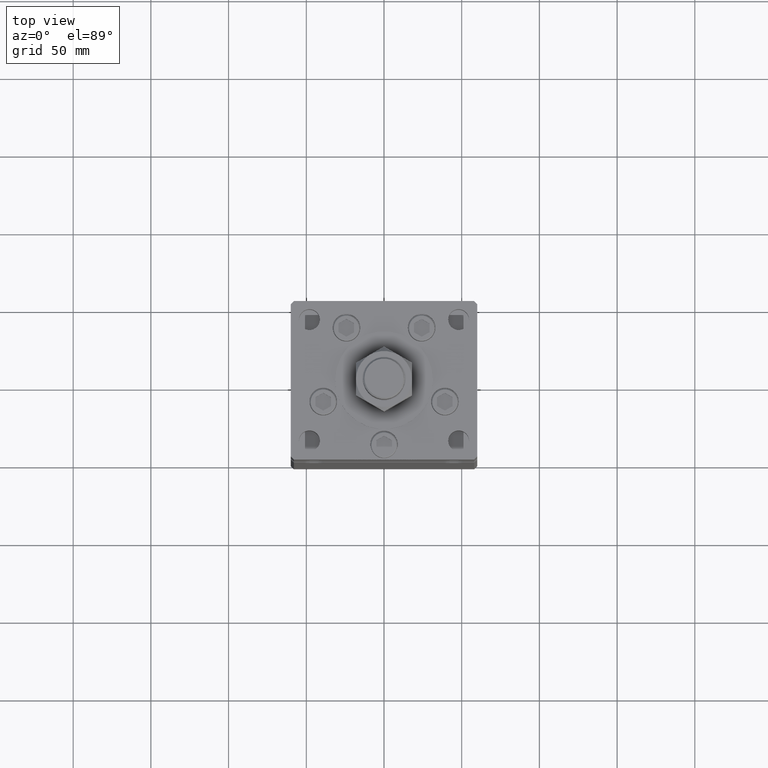
[diagram: clean part render]
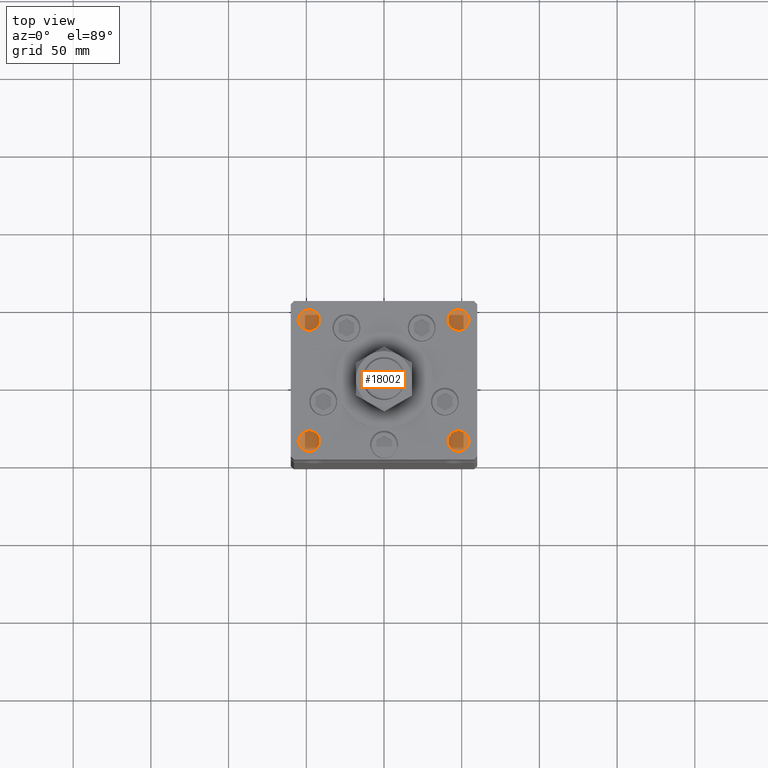
[diagram: same view with one face highlighted and labeled with its STEP entity id]
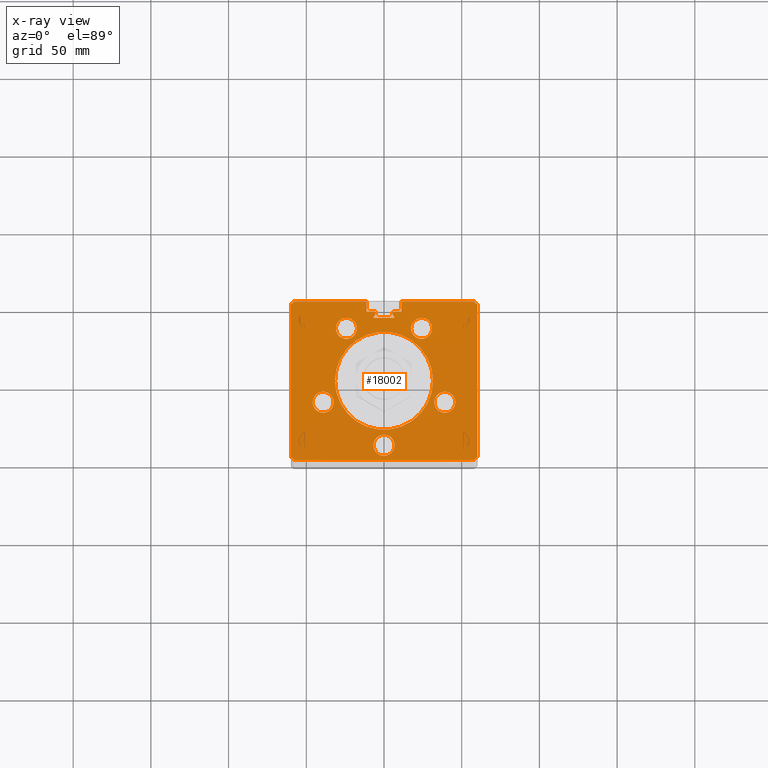
[diagram: x-ray of the same camera — body ghosted, the highlighted face saturated]
A machine part, top view. The second image highlights one B-rep face of the part: STEP entity #18002.
The next image is the same camera in x-ray: the body ghosted, the highlighted face saturated — about 0% of this face is hidden behind the body in this view.
In plain terms, the highlighted planar face has unit normal (0, 0, -1).
Its self-contained STEP definition (entity closure, byte-faithful):
#184 = AXIS2_PLACEMENT_3D ( 'NONE', #44796, #23506, #49489 ) ;
#585 = CARTESIAN_POINT ( 'NONE',  ( -60.00000000000001421, 49.00000000000000000, 318.5000000000000000 ) ) ;
#901 = ORIENTED_EDGE ( 'NONE', *, *, #24829, .F. ) ;
#908 = ORIENTED_EDGE ( 'NONE', *, *, #42761, .T. ) ;
#933 = AXIS2_PLACEMENT_3D ( 'NONE', #26410, #10060, #23847 ) ;
#1449 = LINE ( 'NONE', #18329, #40285 ) ;
#1496 = VERTEX_POINT ( 'NONE', #4955 ) ;
#1750 = DIRECTION ( 'NONE',  ( 0.000000000000000000, 0.000000000000000000, -1.000000000000000000 ) ) ;
#2105 = CARTESIAN_POINT ( 'NONE',  ( -11.24999999999999822, 51.00000000000000711, 318.5000000000000000 ) ) ;
#2210 = CARTESIAN_POINT ( 'NONE',  ( 2.541142108230757874E-15, -41.50000000000000000, 318.5000000000000000 ) ) ;
#2212 = CARTESIAN_POINT ( 'NONE',  ( -31.50000000000000000, 0.000000000000000000, 318.5000000000000000 ) ) ;
#2327 = DIRECTION ( 'NONE',  ( 2.832201593431522219E-16, -1.000000000000000000, 0.000000000000000000 ) ) ;
#2602 = VECTOR ( 'NONE', #2327, 1000.000000000000000 ) ;
#2638 = VERTEX_POINT ( 'NONE', #5847 ) ;
#2900 = AXIS2_PLACEMENT_3D ( 'NONE', #53317, #10976, #19009 ) ;
#2907 = EDGE_CURVE ( 'NONE', #54225, #7369, #43151, .T. ) ;
#3264 = CARTESIAN_POINT ( 'NONE',  ( 0.000000000000000000, 0.000000000000000000, 318.5000000000000000 ) ) ;
#3308 = ORIENTED_EDGE ( 'NONE', *, *, #46725, .F. ) ;
#3716 = AXIS2_PLACEMENT_3D ( 'NONE', #23276, #52300, #52017 ) ;
#3747 = VERTEX_POINT ( 'NONE', #6344 ) ;
#3781 = ORIENTED_EDGE ( 'NONE', *, *, #25517, .F. ) ;
#4073 = VECTOR ( 'NONE', #10491, 1000.000000000000000 ) ;
#4094 = VERTEX_POINT ( 'NONE', #6556 ) ;
#4399 = CARTESIAN_POINT ( 'NONE',  ( -45.87657522565562829, -13.83333333333334636, 318.5000000000000000 ) ) ;
#4817 = CARTESIAN_POINT ( 'NONE',  ( 11.24999999999999112, 51.00000000000000711, 318.5000000000000000 ) ) ;
#4955 = CARTESIAN_POINT ( 'NONE',  ( -17.44288941894912881, 33.71875000000000000, 318.5000000000000000 ) ) ;
#5012 = EDGE_CURVE ( 'NONE', #21434, #29641, #44481, .T. ) ;
#5200 = EDGE_CURVE ( 'NONE', #33387, #13424, #28357, .T. ) ;
#5481 = CIRCLE ( 'NONE', #32014, 6.749999999999999112 ) ;
#5847 = CARTESIAN_POINT ( 'NONE',  ( -30.94288941894912526, 33.71875000000000000, 318.5000000000000000 ) ) ;
#5978 = ORIENTED_EDGE ( 'NONE', *, *, #45956, .F. ) ;
#6019 = CARTESIAN_POINT ( 'NONE',  ( 39.12657522565562829, -13.83333333333334103, 318.5000000000000000 ) ) ;
#6159 = CARTESIAN_POINT ( 'NONE',  ( 11.24999999999999822, 44.50000000000000711, 318.5000000000000000 ) ) ;
#6182 = CIRCLE ( 'NONE', #51262, 31.50000000000000000 ) ;
#6344 = CARTESIAN_POINT ( 'NONE',  ( 45.87657522565562829, -13.83333333333334103, 318.5000000000000000 ) ) ;
#6533 = AXIS2_PLACEMENT_3D ( 'NONE', #10039, #39634, #35496 ) ;
#6556 = CARTESIAN_POINT ( 'NONE',  ( 30.94288941894911815, 33.71875000000000000, 318.5000000000000000 ) ) ;
#6842 = VERTEX_POINT ( 'NONE', #15455 ) ;
#7126 = EDGE_CURVE ( 'NONE', #53604, #15767, #15959, .T. ) ;
#7263 = CARTESIAN_POINT ( 'NONE',  ( -11.24999999999999822, 0.000000000000000000, 318.5000000000000000 ) ) ;
#7269 = CIRCLE ( 'NONE', #184, 6.749999999999999112 ) ;
#7369 = VERTEX_POINT ( 'NONE', #51438 ) ;
#7412 = FACE_BOUND ( 'NONE', #22142, .T. ) ;
#7494 = DIRECTION ( 'NONE',  ( 1.000000000000000000, 0.000000000000000000, 0.000000000000000000 ) ) ;
#7620 = CIRCLE ( 'NONE', #24481, 6.749999999999999112 ) ;
#7933 = AXIS2_PLACEMENT_3D ( 'NONE', #37122, #44606, #54004 ) ;
#8007 = VERTEX_POINT ( 'NONE', #51824 ) ;
#8199 = DIRECTION ( 'NONE',  ( 1.000000000000000000, 0.000000000000000000, 0.000000000000000000 ) ) ;
#8498 = LINE ( 'NONE', #12379, #39669 ) ;
#8671 = VERTEX_POINT ( 'NONE', #53897 ) ;
#8791 = AXIS2_PLACEMENT_3D ( 'NONE', #10600, #1750, #16350 ) ;
#8836 = VERTEX_POINT ( 'NONE', #18426 ) ;
#9064 = CIRCLE ( 'NONE', #6533, 6.749999999999999112 ) ;
#9176 = EDGE_CURVE ( 'NONE', #54225, #6842, #24843, .T. ) ;
#9593 = ORIENTED_EDGE ( 'NONE', *, *, #27259, .F. ) ;
#10039 = CARTESIAN_POINT ( 'NONE',  ( -24.19288941894912881, 33.71875000000000000, 318.5000000000000000 ) ) ;
#10060 = DIRECTION ( 'NONE',  ( -0.000000000000000000, 0.000000000000000000, 1.000000000000000000 ) ) ;
#10099 = DIRECTION ( 'NONE',  ( 0.000000000000000000, 0.000000000000000000, -1.000000000000000000 ) ) ;
#10491 = DIRECTION ( 'NONE',  ( -1.000000000000000000, 0.000000000000000000, 0.000000000000000000 ) ) ;
#10562 = VECTOR ( 'NONE', #27064, 1000.000000000000000 ) ;
#10600 = CARTESIAN_POINT ( 'NONE',  ( -6.183333333333997928, 43.56666666666600207, 318.5000000000000000 ) ) ;
#10867 = LINE ( 'NONE', #27776, #15616 ) ;
#10976 = DIRECTION ( 'NONE',  ( 0.000000000000000000, 0.000000000000000000, 1.000000000000000000 ) ) ;
#11452 = VECTOR ( 'NONE', #19261, 1000.000000000000000 ) ;
#11784 = VERTEX_POINT ( 'NONE', #16831 ) ;
#12077 = VECTOR ( 'NONE', #40346, 1000.000000000000000 ) ;
#12379 = CARTESIAN_POINT ( 'NONE',  ( 59.99999999999998579, -48.99999999999998579, 318.5000000000000000 ) ) ;
#12549 = ORIENTED_EDGE ( 'NONE', *, *, #32867, .F. ) ;
#13041 = ORIENTED_EDGE ( 'NONE', *, *, #40275, .F. ) ;
#13424 = VERTEX_POINT ( 'NONE', #39675 ) ;
#13457 = CIRCLE ( 'NONE', #2900, 6.749999999999999112 ) ;
#13556 = EDGE_CURVE ( 'NONE', #47385, #24128, #46034, .T. ) ;
#14498 = EDGE_CURVE ( 'NONE', #8007, #33387, #1449, .T. ) ;
#14509 = CARTESIAN_POINT ( 'NONE',  ( -60.00000000000001421, 49.00000000000000000, 318.5000000000000000 ) ) ;
#14885 = FACE_BOUND ( 'NONE', #51532, .T. ) ;
#15006 = EDGE_CURVE ( 'NONE', #7369, #41560, #28510, .T. ) ;
#15174 = FACE_BOUND ( 'NONE', #22967, .T. ) ;
#15449 = FACE_BOUND ( 'NONE', #47855, .T. ) ;
#15455 = CARTESIAN_POINT ( 'NONE',  ( 6.183333333333997928, 44.50000000000000711, 318.5000000000000000 ) ) ;
#15602 = ORIENTED_EDGE ( 'NONE', *, *, #38655, .T. ) ;
#15616 = VECTOR ( 'NONE', #44904, 1000.000000000000114 ) ;
#15690 = CARTESIAN_POINT ( 'NONE',  ( -11.24999999999999822, 51.00000000000000711, 318.5000000000000000 ) ) ;
#15767 = VERTEX_POINT ( 'NONE', #2212 ) ;
#15915 = LINE ( 'NONE', #45512, #46255 ) ;
#15922 = VERTEX_POINT ( 'NONE', #50607 ) ;
#15959 = CIRCLE ( 'NONE', #933, 31.50000000000000000 ) ;
#15995 = FACE_BOUND ( 'NONE', #32657, .T. ) ;
#16350 = DIRECTION ( 'NONE',  ( 1.000000000000000000, 0.000000000000000000, 0.000000000000000000 ) ) ;
#16377 = EDGE_CURVE ( 'NONE', #11784, #33082, #7620, .T. ) ;
#16535 = DIRECTION ( 'NONE',  ( -1.000000000000000000, 0.000000000000000000, 0.000000000000000000 ) ) ;
#16831 = CARTESIAN_POINT ( 'NONE',  ( 6.750000000000001776, -41.50000000000000000, 318.5000000000000000 ) ) ;
#16852 = EDGE_CURVE ( 'NONE', #13424, #32192, #10867, .T. ) ;
#16891 = LINE ( 'NONE', #41799, #49589 ) ;
#18002 = ADVANCED_FACE ( 'NONE', ( #15174, #7412, #45589, #15995, #14885, #32610, #15449 ), #24317, .F. ) ;
#18061 = DIRECTION ( 'NONE',  ( 1.000000000000000000, 0.000000000000000000, 0.000000000000000000 ) ) ;
#18091 = EDGE_CURVE ( 'NONE', #24128, #25380, #36201, .T. ) ;
#18329 = CARTESIAN_POINT ( 'NONE',  ( -57.99999999999999289, 51.00000000000000711, 318.5000000000000000 ) ) ;
#18426 = CARTESIAN_POINT ( 'NONE',  ( -5.375042956467942723, 43.09999999999899956, 318.5000000000000000 ) ) ;
#18945 = EDGE_LOOP ( 'NONE', ( #908, #19590, #3781, #48355, #24277, #30495, #39314, #9593, #35814, #52666, #12549, #34738, #36442, #50326, #31769, #53788, #15602, #901, #21529 ) ) ;
#19009 = DIRECTION ( 'NONE',  ( 1.000000000000000000, 0.000000000000000000, 0.000000000000000000 ) ) ;
#19248 = EDGE_CURVE ( 'NONE', #30731, #8671, #45178, .T. ) ;
#19261 = DIRECTION ( 'NONE',  ( 1.000000000000000000, 0.000000000000000000, 0.000000000000000000 ) ) ;
#19395 = CIRCLE ( 'NONE', #50310, 6.749999999999999112 ) ;
#19590 = ORIENTED_EDGE ( 'NONE', *, *, #19248, .T. ) ;
#20488 = VERTEX_POINT ( 'NONE', #4399 ) ;
#21064 = CARTESIAN_POINT ( 'NONE',  ( 17.44288941894912170, 33.71875000000000000, 318.5000000000000000 ) ) ;
#21434 = VERTEX_POINT ( 'NONE', #4817 ) ;
#21529 = ORIENTED_EDGE ( 'NONE', *, *, #33789, .F. ) ;
#22033 = VECTOR ( 'NONE', #44604, 1000.000000000000000 ) ;
#22140 = CARTESIAN_POINT ( 'NONE',  ( 22.69412966890515193, 13.10246187336661094, 318.5000000000000000 ) ) ;
#22142 = EDGE_LOOP ( 'NONE', ( #31495, #40987 ) ) ;
#22430 = CARTESIAN_POINT ( 'NONE',  ( -57.99999999999997868, -50.99999999999999289, 318.5000000000000000 ) ) ;
#22967 = EDGE_LOOP ( 'NONE', ( #5978, #28641 ) ) ;
#23258 = CARTESIAN_POINT ( 'NONE',  ( 0.000000000000000000, 40.49999999999987210, 318.5000000000000000 ) ) ;
#23276 = CARTESIAN_POINT ( 'NONE',  ( -39.12657522565562829, -13.83333333333334636, 318.5000000000000000 ) ) ;
#23311 = CIRCLE ( 'NONE', #49803, 6.749999999999999112 ) ;
#23484 = CARTESIAN_POINT ( 'NONE',  ( 60.00000000000001421, 49.00000000000000000, 318.5000000000000000 ) ) ;
#23506 = DIRECTION ( 'NONE',  ( 0.000000000000000000, 0.000000000000000000, 1.000000000000000000 ) ) ;
#23534 = VERTEX_POINT ( 'NONE', #21064 ) ;
#23543 = CARTESIAN_POINT ( 'NONE',  ( -6.876153656360465050, 40.49999999999987210, 318.5000000000000000 ) ) ;
#23837 = CIRCLE ( 'NONE', #8791, 0.9333333333340008142 ) ;
#23847 = DIRECTION ( 'NONE',  ( 1.000000000000000000, 0.000000000000000000, 0.000000000000000000 ) ) ;
#24128 = VERTEX_POINT ( 'NONE', #48721 ) ;
#24277 = ORIENTED_EDGE ( 'NONE', *, *, #5200, .T. ) ;
#24317 = PLANE ( 'NONE',  #35944 ) ;
#24481 = AXIS2_PLACEMENT_3D ( 'NONE', #2210, #27407, #45377 ) ;
#24829 = EDGE_CURVE ( 'NONE', #15922, #8836, #23837, .T. ) ;
#24843 = CIRCLE ( 'NONE', #47811, 0.9333333333340008142 ) ;
#25286 = DIRECTION ( 'NONE',  ( 0.7071067811865500152, -0.7071067811865451302, 0.000000000000000000 ) ) ;
#25356 = EDGE_CURVE ( 'NONE', #33082, #11784, #19395, .T. ) ;
#25380 = VERTEX_POINT ( 'NONE', #27296 ) ;
#25394 = DIRECTION ( 'NONE',  ( -0.7071067811865474617, -0.7071067811865474617, 0.000000000000000000 ) ) ;
#25517 = EDGE_CURVE ( 'NONE', #8007, #8671, #44718, .T. ) ;
#25911 = VECTOR ( 'NONE', #16535, 1000.000000000000000 ) ;
#26292 = CARTESIAN_POINT ( 'NONE',  ( 57.99999999999997868, -50.99999999999999289, 318.5000000000000000 ) ) ;
#26410 = CARTESIAN_POINT ( 'NONE',  ( 0.000000000000000000, 0.000000000000000000, 318.5000000000000000 ) ) ;
#26626 = VECTOR ( 'NONE', #8199, 1000.000000000000000 ) ;
#27064 = DIRECTION ( 'NONE',  ( -0.000000000000000000, -1.000000000000000000, 0.000000000000000000 ) ) ;
#27259 = EDGE_CURVE ( 'NONE', #25380, #49910, #8498, .T. ) ;
#27296 = CARTESIAN_POINT ( 'NONE',  ( 59.99999999999998579, -48.99999999999998579, 318.5000000000000000 ) ) ;
#27397 = DIRECTION ( 'NONE',  ( 0.000000000000000000, 0.000000000000000000, 1.000000000000000000 ) ) ;
#27407 = DIRECTION ( 'NONE',  ( 0.000000000000000000, 0.000000000000000000, 1.000000000000000000 ) ) ;
#27539 = AXIS2_PLACEMENT_3D ( 'NONE', #52149, #10099, #36406 ) ;
#27776 = CARTESIAN_POINT ( 'NONE',  ( -59.99999999999998579, -48.99999999999998579, 318.5000000000000000 ) ) ;
#28275 = DIRECTION ( 'NONE',  ( 0.000000000000000000, 0.000000000000000000, 1.000000000000000000 ) ) ;
#28357 = LINE ( 'NONE', #14509, #2602 ) ;
#28510 = LINE ( 'NONE', #23258, #4073 ) ;
#28641 = ORIENTED_EDGE ( 'NONE', *, *, #34335, .F. ) ;
#28731 = EDGE_CURVE ( 'NONE', #29641, #6842, #39610, .T. ) ;
#28831 = VERTEX_POINT ( 'NONE', #28830 ) ;
#28830 = CARTESIAN_POINT ( 'NONE',  ( -32.37657522565562829, -13.83333333333334636, 318.5000000000000000 ) ) ;
#29640 = DIRECTION ( 'NONE',  ( 0.4999999999999985012, -0.8660254037844393737, 0.000000000000000000 ) ) ;
#29641 = VERTEX_POINT ( 'NONE', #6159 ) ;
#30495 = ORIENTED_EDGE ( 'NONE', *, *, #16852, .T. ) ;
#30731 = VERTEX_POINT ( 'NONE', #33299 ) ;
#31324 = CARTESIAN_POINT ( 'NONE',  ( -24.19288941894912881, 33.71875000000000000, 318.5000000000000000 ) ) ;
#31495 = ORIENTED_EDGE ( 'NONE', *, *, #16377, .F. ) ;
#31592 = DIRECTION ( 'NONE',  ( 1.000000000000000000, 0.000000000000000000, 0.000000000000000000 ) ) ;
#31606 = VECTOR ( 'NONE', #45981, 1000.000000000000000 ) ;
#31769 = ORIENTED_EDGE ( 'NONE', *, *, #2907, .T. ) ;
#31778 = DIRECTION ( 'NONE',  ( 1.000000000000000000, 0.000000000000000000, 0.000000000000000000 ) ) ;
#32014 = AXIS2_PLACEMENT_3D ( 'NONE', #31324, #28275, #31592 ) ;
#32192 = VERTEX_POINT ( 'NONE', #22430 ) ;
#32421 = DIRECTION ( 'NONE',  ( 1.000000000000000000, 0.000000000000000000, 0.000000000000000000 ) ) ;
#32583 = LINE ( 'NONE', #15690, #26626 ) ;
#32610 = FACE_OUTER_BOUND ( 'NONE', #18945, .T. ) ;
#32657 = EDGE_LOOP ( 'NONE', ( #54126, #42495 ) ) ;
#32867 = EDGE_CURVE ( 'NONE', #21434, #47385, #32583, .T. ) ;
#33082 = VERTEX_POINT ( 'NONE', #36933 ) ;
#33152 = LINE ( 'NONE', #45856, #25911 ) ;
#33299 = CARTESIAN_POINT ( 'NONE',  ( -11.24999999999999822, 44.50000000000000711, 318.5000000000000000 ) ) ;
#33387 = VERTEX_POINT ( 'NONE', #585 ) ;
#33496 = VECTOR ( 'NONE', #29640, 1000.000000000000114 ) ;
#33789 = EDGE_CURVE ( 'NONE', #40636, #15922, #42526, .T. ) ;
#34335 = EDGE_CURVE ( 'NONE', #20488, #28831, #37282, .T. ) ;
#34738 = ORIENTED_EDGE ( 'NONE', *, *, #5012, .T. ) ;
#34784 = DIRECTION ( 'NONE',  ( 0.000000000000000000, 0.000000000000000000, 1.000000000000000000 ) ) ;
#34876 = DIRECTION ( 'NONE',  ( 1.000000000000000000, 0.000000000000000000, 0.000000000000000000 ) ) ;
#35045 = CARTESIAN_POINT ( 'NONE',  ( 2.541142108230757874E-15, -41.50000000000000000, 318.5000000000000000 ) ) ;
#35496 = DIRECTION ( 'NONE',  ( 1.000000000000000000, 0.000000000000000000, 0.000000000000000000 ) ) ;
#35814 = ORIENTED_EDGE ( 'NONE', *, *, #18091, .F. ) ;
#35827 = VECTOR ( 'NONE', #25286, 1000.000000000000114 ) ;
#35944 = AXIS2_PLACEMENT_3D ( 'NONE', #3264, #49199, #36754 ) ;
#36028 = CARTESIAN_POINT ( 'NONE',  ( 0.000000000000000000, 44.50000000000000711, 318.5000000000000000 ) ) ;
#36201 = LINE ( 'NONE', #23484, #12077 ) ;
#36349 = EDGE_CURVE ( 'NONE', #23534, #4094, #7269, .T. ) ;
#36406 = DIRECTION ( 'NONE',  ( 1.000000000000000000, 0.000000000000000000, 0.000000000000000000 ) ) ;
#36442 = ORIENTED_EDGE ( 'NONE', *, *, #28731, .T. ) ;
#36754 = DIRECTION ( 'NONE',  ( -1.000000000000000000, 0.000000000000000000, -0.000000000000000000 ) ) ;
#36933 = CARTESIAN_POINT ( 'NONE',  ( -6.749999999999996447, -41.50000000000000000, 318.5000000000000000 ) ) ;
#37098 = CARTESIAN_POINT ( 'NONE',  ( 6.183333333333997928, 43.56666666666600207, 318.5000000000000000 ) ) ;
#37122 = CARTESIAN_POINT ( 'NONE',  ( -39.12657522565562829, -13.83333333333334636, 318.5000000000000000 ) ) ;
#37146 = AXIS2_PLACEMENT_3D ( 'NONE', #52282, #27397, #34876 ) ;
#37282 = CIRCLE ( 'NONE', #3716, 6.749999999999999112 ) ;
#37750 = DIRECTION ( 'NONE',  ( 0.4999999999999985012, 0.8660254037844393737, 0.000000000000000000 ) ) ;
#38142 = ORIENTED_EDGE ( 'NONE', *, *, #52084, .F. ) ;
#38655 = EDGE_CURVE ( 'NONE', #41560, #8836, #15915, .T. ) ;
#39314 = ORIENTED_EDGE ( 'NONE', *, *, #49155, .T. ) ;
#39405 = ORIENTED_EDGE ( 'NONE', *, *, #7126, .F. ) ;
#39589 = ORIENTED_EDGE ( 'NONE', *, *, #53419, .F. ) ;
#39610 = LINE ( 'NONE', #36028, #22033 ) ;
#39634 = DIRECTION ( 'NONE',  ( 0.000000000000000000, 0.000000000000000000, 1.000000000000000000 ) ) ;
#39669 = VECTOR ( 'NONE', #25394, 1000.000000000000114 ) ;
#39675 = CARTESIAN_POINT ( 'NONE',  ( -59.99999999999998579, -48.99999999999998579, 318.5000000000000000 ) ) ;
#40187 = CARTESIAN_POINT ( 'NONE',  ( 0.000000000000000000, 0.000000000000000000, 318.5000000000000000 ) ) ;
#40275 = EDGE_CURVE ( 'NONE', #3747, #43450, #23311, .T. ) ;
#40285 = VECTOR ( 'NONE', #53189, 1000.000000000000114 ) ;
#40346 = DIRECTION ( 'NONE',  ( -2.832201593431522219E-16, -1.000000000000000000, 0.000000000000000000 ) ) ;
#40424 = ORIENTED_EDGE ( 'NONE', *, *, #41345, .F. ) ;
#40636 = VERTEX_POINT ( 'NONE', #52072 ) ;
#40987 = ORIENTED_EDGE ( 'NONE', *, *, #25356, .F. ) ;
#41345 = EDGE_CURVE ( 'NONE', #2638, #1496, #9064, .T. ) ;
#41412 = CARTESIAN_POINT ( 'NONE',  ( 57.99999999999999289, 51.00000000000000711, 318.5000000000000000 ) ) ;
#41560 = VERTEX_POINT ( 'NONE', #23543 ) ;
#41799 = CARTESIAN_POINT ( 'NONE',  ( -57.99999999999997868, -50.99999999999999289, 318.5000000000000000 ) ) ;
#42495 = ORIENTED_EDGE ( 'NONE', *, *, #36349, .F. ) ;
#42526 = CIRCLE ( 'NONE', #27539, 0.9333333333340008142 ) ;
#42761 = EDGE_CURVE ( 'NONE', #40636, #30731, #33152, .T. ) ;
#42963 = CARTESIAN_POINT ( 'NONE',  ( 32.37657522565562829, -13.83333333333334103, 318.5000000000000000 ) ) ;
#43151 = LINE ( 'NONE', #22140, #33496 ) ;
#43450 = VERTEX_POINT ( 'NONE', #42963 ) ;
#43621 = DIRECTION ( 'NONE',  ( 1.000000000000000000, 0.000000000000000000, 0.000000000000000000 ) ) ;
#43774 = DIRECTION ( 'NONE',  ( -0.000000000000000000, 0.000000000000000000, 1.000000000000000000 ) ) ;
#44143 = CARTESIAN_POINT ( 'NONE',  ( 5.375042956467942723, 43.09999999999899956, 318.5000000000000000 ) ) ;
#44481 = LINE ( 'NONE', #45028, #10562 ) ;
#44604 = DIRECTION ( 'NONE',  ( -1.000000000000000000, 0.000000000000000000, 0.000000000000000000 ) ) ;
#44606 = DIRECTION ( 'NONE',  ( 0.000000000000000000, 0.000000000000000000, 1.000000000000000000 ) ) ;
#44718 = LINE ( 'NONE', #2105, #11452 ) ;
#44796 = CARTESIAN_POINT ( 'NONE',  ( 24.19288941894912170, 33.71875000000000000, 318.5000000000000000 ) ) ;
#44857 = DIRECTION ( 'NONE',  ( 0.000000000000000000, 0.000000000000000000, -1.000000000000000000 ) ) ;
#44904 = DIRECTION ( 'NONE',  ( 0.7071067811865474617, -0.7071067811865474617, 0.000000000000000000 ) ) ;
#45012 = CARTESIAN_POINT ( 'NONE',  ( 31.50000000000000000, 3.857637417314162689E-15, 318.5000000000000000 ) ) ;
#45028 = CARTESIAN_POINT ( 'NONE',  ( 11.24999999999999822, 0.000000000000000000, 318.5000000000000000 ) ) ;
#45178 = LINE ( 'NONE', #7263, #31606 ) ;
#45377 = DIRECTION ( 'NONE',  ( 1.000000000000000000, 0.000000000000000000, 0.000000000000000000 ) ) ;
#45512 = CARTESIAN_POINT ( 'NONE',  ( -22.69412966890515193, 13.10246187336661094, 318.5000000000000000 ) ) ;
#45589 = FACE_BOUND ( 'NONE', #52069, .T. ) ;
#45856 = CARTESIAN_POINT ( 'NONE',  ( 0.000000000000000000, 44.50000000000000711, 318.5000000000000000 ) ) ;
#45956 = EDGE_CURVE ( 'NONE', #28831, #20488, #47668, .T. ) ;
#45981 = DIRECTION ( 'NONE',  ( 0.000000000000000000, 1.000000000000000000, 0.000000000000000000 ) ) ;
#46034 = LINE ( 'NONE', #46312, #35827 ) ;
#46255 = VECTOR ( 'NONE', #37750, 1000.000000000000114 ) ;
#46312 = CARTESIAN_POINT ( 'NONE',  ( 57.99999999999999289, 51.00000000000000711, 318.5000000000000000 ) ) ;
#46725 = EDGE_CURVE ( 'NONE', #15767, #53604, #6182, .T. ) ;
#46970 = EDGE_CURVE ( 'NONE', #4094, #23534, #52996, .T. ) ;
#47385 = VERTEX_POINT ( 'NONE', #41412 ) ;
#47668 = CIRCLE ( 'NONE', #7933, 6.749999999999999112 ) ;
#47811 = AXIS2_PLACEMENT_3D ( 'NONE', #37098, #44857, #32421 ) ;
#47855 = EDGE_LOOP ( 'NONE', ( #3308, #39405 ) ) ;
#48355 = ORIENTED_EDGE ( 'NONE', *, *, #14498, .T. ) ;
#48721 = CARTESIAN_POINT ( 'NONE',  ( 60.00000000000001421, 49.00000000000000000, 318.5000000000000000 ) ) ;
#48934 = DIRECTION ( 'NONE',  ( 0.000000000000000000, 0.000000000000000000, 1.000000000000000000 ) ) ;
#49155 = EDGE_CURVE ( 'NONE', #32192, #49910, #16891, .T. ) ;
#49199 = DIRECTION ( 'NONE',  ( 0.000000000000000000, 0.000000000000000000, -1.000000000000000000 ) ) ;
#49489 = DIRECTION ( 'NONE',  ( 1.000000000000000000, 0.000000000000000000, 0.000000000000000000 ) ) ;
#49589 = VECTOR ( 'NONE', #7494, 1000.000000000000000 ) ;
#49803 = AXIS2_PLACEMENT_3D ( 'NONE', #6019, #48934, #31778 ) ;
#49910 = VERTEX_POINT ( 'NONE', #26292 ) ;
#50310 = AXIS2_PLACEMENT_3D ( 'NONE', #35045, #34784, #43621 ) ;
#50326 = ORIENTED_EDGE ( 'NONE', *, *, #9176, .F. ) ;
#50607 = CARTESIAN_POINT ( 'NONE',  ( -5.249999999999996447, 43.56666666666600207, 318.5000000000000000 ) ) ;
#51262 = AXIS2_PLACEMENT_3D ( 'NONE', #40187, #43774, #18061 ) ;
#51438 = CARTESIAN_POINT ( 'NONE',  ( 6.876153656360465050, 40.49999999999987210, 318.5000000000000000 ) ) ;
#51532 = EDGE_LOOP ( 'NONE', ( #38142, #40424 ) ) ;
#51824 = CARTESIAN_POINT ( 'NONE',  ( -57.99999999999999289, 51.00000000000000711, 318.5000000000000000 ) ) ;
#52017 = DIRECTION ( 'NONE',  ( 1.000000000000000000, 0.000000000000000000, 0.000000000000000000 ) ) ;
#52069 = EDGE_LOOP ( 'NONE', ( #13041, #39589 ) ) ;
#52072 = CARTESIAN_POINT ( 'NONE',  ( -6.183333333333997928, 44.50000000000000711, 318.5000000000000000 ) ) ;
#52084 = EDGE_CURVE ( 'NONE', #1496, #2638, #5481, .T. ) ;
#52149 = CARTESIAN_POINT ( 'NONE',  ( -6.183333333333997928, 43.56666666666600207, 318.5000000000000000 ) ) ;
#52282 = CARTESIAN_POINT ( 'NONE',  ( 24.19288941894912170, 33.71875000000000000, 318.5000000000000000 ) ) ;
#52300 = DIRECTION ( 'NONE',  ( 0.000000000000000000, 0.000000000000000000, 1.000000000000000000 ) ) ;
#52666 = ORIENTED_EDGE ( 'NONE', *, *, #13556, .F. ) ;
#52996 = CIRCLE ( 'NONE', #37146, 6.749999999999999112 ) ;
#53189 = DIRECTION ( 'NONE',  ( -0.7071067811865500152, -0.7071067811865451302, 0.000000000000000000 ) ) ;
#53317 = CARTESIAN_POINT ( 'NONE',  ( 39.12657522565562829, -13.83333333333334103, 318.5000000000000000 ) ) ;
#53419 = EDGE_CURVE ( 'NONE', #43450, #3747, #13457, .T. ) ;
#53604 = VERTEX_POINT ( 'NONE', #45012 ) ;
#53788 = ORIENTED_EDGE ( 'NONE', *, *, #15006, .T. ) ;
#53897 = CARTESIAN_POINT ( 'NONE',  ( -11.24999999999999822, 51.00000000000000711, 318.5000000000000000 ) ) ;
#54004 = DIRECTION ( 'NONE',  ( 1.000000000000000000, 0.000000000000000000, 0.000000000000000000 ) ) ;
#54126 = ORIENTED_EDGE ( 'NONE', *, *, #46970, .F. ) ;
#54225 = VERTEX_POINT ( 'NONE', #44143 ) ;